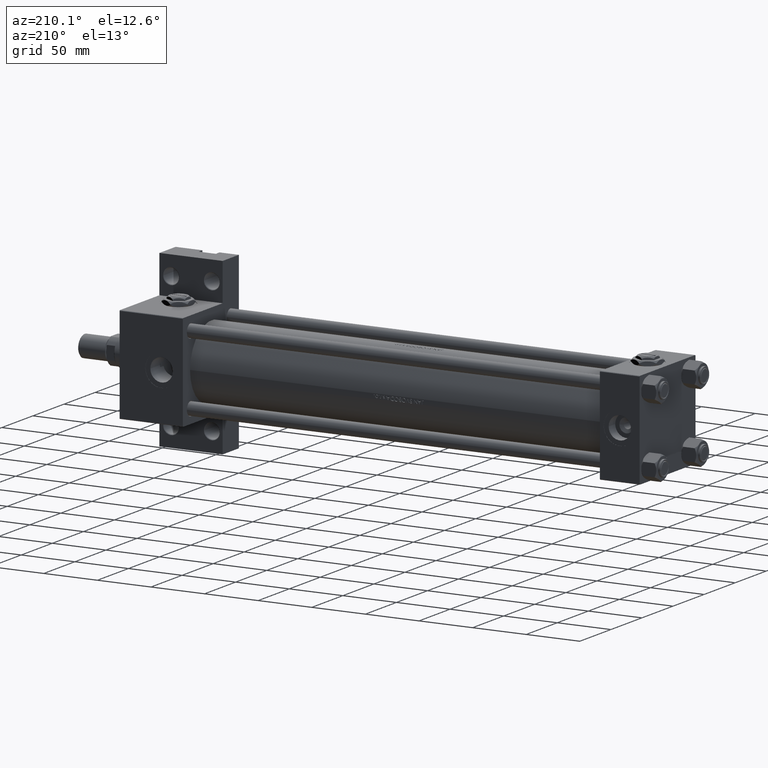
[diagram: clean part render]
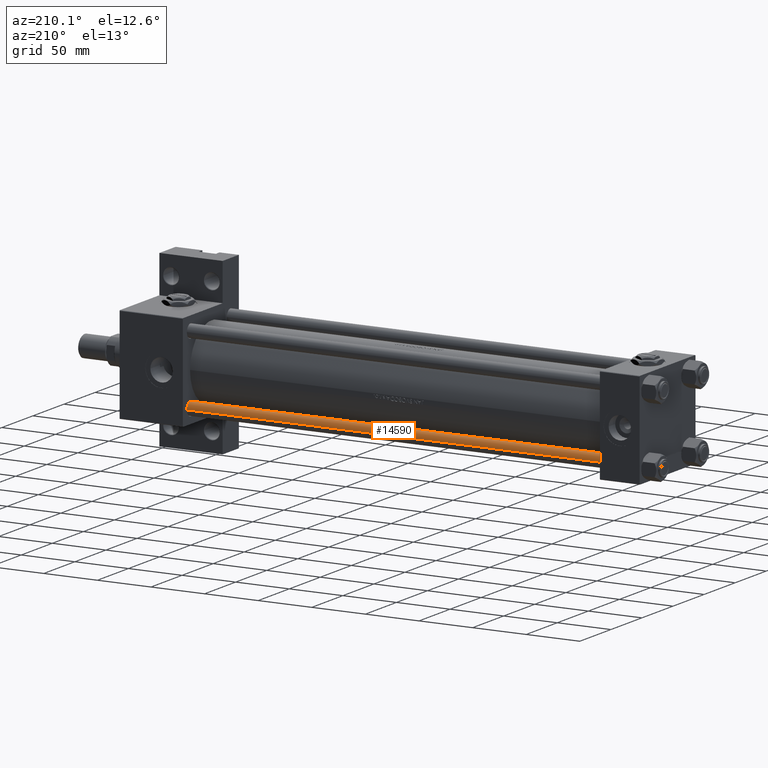
[diagram: same view with one face highlighted and labeled with its STEP entity id]
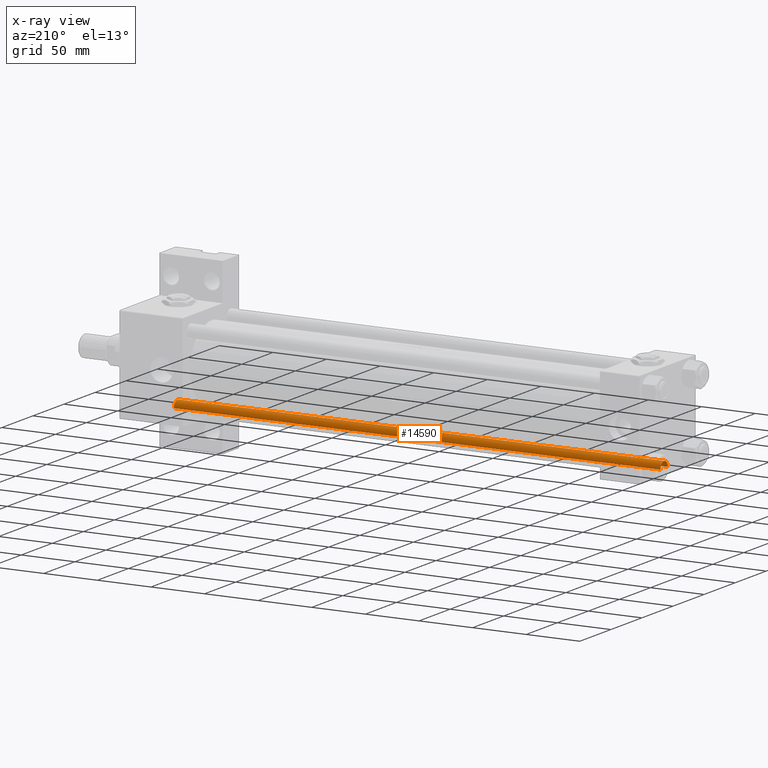
[diagram: x-ray of the same camera — body ghosted, the highlighted face saturated]
A machine part, auxiliary view. The second image highlights one B-rep face of the part: STEP entity #14590.
The next image is the same camera in x-ray: the body ghosted, the highlighted face saturated — about 0% of this face is hidden behind the body in this view.
In plain terms, the highlighted cylindrical surface (edge-blend (fillet) strip) has radius 6 mm, axis along (-1, -0, 0).
Its self-contained STEP definition (entity closure, byte-faithful):
#2312 = CARTESIAN_POINT ( 'NONE',  ( 6.000000000000000888, 7.347880794884119736E-16, 0.5000000000002224887 ) ) ;
#2462 = CARTESIAN_POINT ( 'NONE',  ( 0.000000000000000000, 0.000000000000000000, 455.0000000000000000 ) ) ;
#3700 = VERTEX_POINT ( 'NONE', #35196 ) ;
#5157 = AXIS2_PLACEMENT_3D ( 'NONE', #2462, #30136, #10308 ) ;
#5998 = FACE_OUTER_BOUND ( 'NONE', #12731, .T. ) ;
#6055 = DIRECTION ( 'NONE',  ( 1.000000000000000000, 0.000000000000000000, 0.000000000000000000 ) ) ;
#9225 = DIRECTION ( 'NONE',  ( -0.000000000000000000, -0.000000000000000000, -1.000000000000000000 ) ) ;
#10308 = DIRECTION ( 'NONE',  ( -1.000000000000000000, 0.000000000000000000, 0.000000000000000000 ) ) ;
#11106 = AXIS2_PLACEMENT_3D ( 'NONE', #29683, #26125, #6055 ) ;
#12731 = EDGE_LOOP ( 'NONE', ( #23472, #34752, #42918, #44231 ) ) ;
#13122 = EDGE_CURVE ( 'NONE', #21822, #3700, #17303, .T. ) ;
#13410 = DIRECTION ( 'NONE',  ( 1.000000000000000000, 0.000000000000000000, 0.000000000000000000 ) ) ;
#13960 = LINE ( 'NONE', #17522, #26740 ) ;
#14590 = ADVANCED_FACE ( 'NONE', ( #5998 ), #37711, .T. ) ;
#15975 = VERTEX_POINT ( 'NONE', #18639 ) ;
#16508 = VECTOR ( 'NONE', #9225, 1000.000000000000000 ) ;
#17303 = CIRCLE ( 'NONE', #47254, 6.000000000000000888 ) ;
#17522 = CARTESIAN_POINT ( 'NONE',  ( 6.000000000000000888, 7.347880794884119736E-16, 455.0000000000000000 ) ) ;
#18639 = CARTESIAN_POINT ( 'NONE',  ( -6.000000000000000888, 0.000000000000000000, 454.5000000000002842 ) ) ;
#21406 = LINE ( 'NONE', #32342, #16508 ) ;
#21451 = EDGE_CURVE ( 'NONE', #15975, #3700, #21406, .T. ) ;
#21822 = VERTEX_POINT ( 'NONE', #2312 ) ;
#23472 = ORIENTED_EDGE ( 'NONE', *, *, #34286, .T. ) ;
#25154 = DIRECTION ( 'NONE',  ( -0.000000000000000000, -0.000000000000000000, -1.000000000000000000 ) ) ;
#26125 = DIRECTION ( 'NONE',  ( 0.000000000000000000, 0.000000000000000000, -1.000000000000000000 ) ) ;
#26740 = VECTOR ( 'NONE', #25154, 1000.000000000000000 ) ;
#28560 = VERTEX_POINT ( 'NONE', #44251 ) ;
#29683 = CARTESIAN_POINT ( 'NONE',  ( 0.000000000000000000, 0.000000000000000000, 454.5000000000002842 ) ) ;
#30136 = DIRECTION ( 'NONE',  ( -0.000000000000000000, -0.000000000000000000, -1.000000000000000000 ) ) ;
#32342 = CARTESIAN_POINT ( 'NONE',  ( -6.000000000000000888, 0.000000000000000000, 455.0000000000000000 ) ) ;
#33708 = DIRECTION ( 'NONE',  ( -0.000000000000000000, -0.000000000000000000, 1.000000000000000000 ) ) ;
#33788 = CIRCLE ( 'NONE', #11106, 6.000000000000000888 ) ;
#34286 = EDGE_CURVE ( 'NONE', #15975, #28560, #33788, .T. ) ;
#34752 = ORIENTED_EDGE ( 'NONE', *, *, #39936, .T. ) ;
#35196 = CARTESIAN_POINT ( 'NONE',  ( -6.000000000000000888, 0.000000000000000000, 0.5000000000002224887 ) ) ;
#36746 = CARTESIAN_POINT ( 'NONE',  ( 0.000000000000000000, 0.000000000000000000, 0.5000000000002224887 ) ) ;
#37711 = CYLINDRICAL_SURFACE ( 'NONE', #5157, 6.000000000000000888 ) ;
#39936 = EDGE_CURVE ( 'NONE', #28560, #21822, #13960, .T. ) ;
#42918 = ORIENTED_EDGE ( 'NONE', *, *, #13122, .T. ) ;
#44231 = ORIENTED_EDGE ( 'NONE', *, *, #21451, .F. ) ;
#44251 = CARTESIAN_POINT ( 'NONE',  ( 6.000000000000000888, 7.347880794884119736E-16, 454.5000000000002842 ) ) ;
#47254 = AXIS2_PLACEMENT_3D ( 'NONE', #36746, #33708, #13410 ) ;